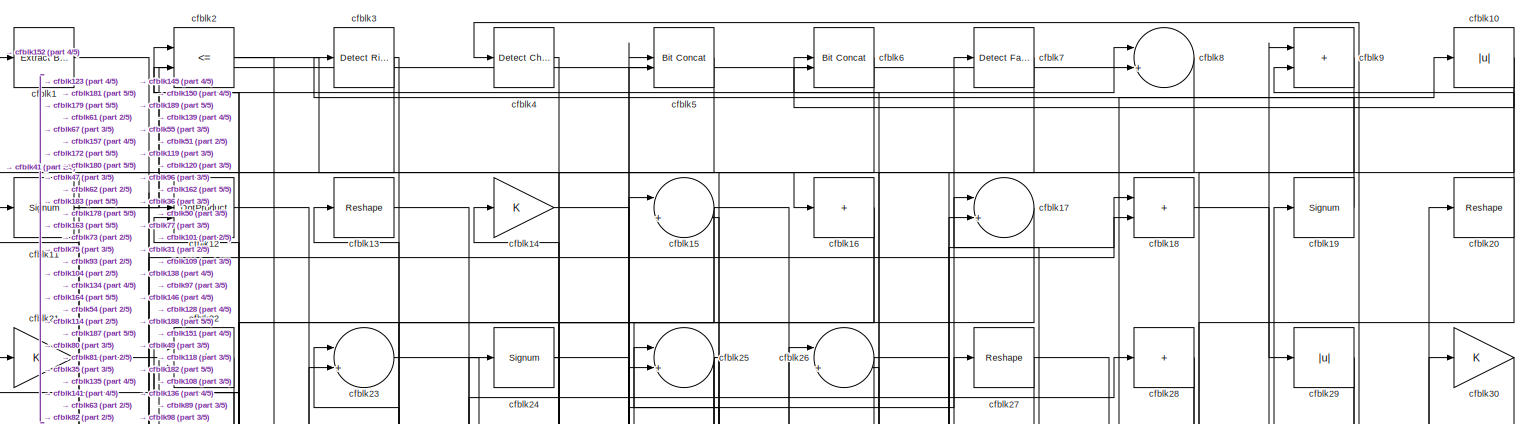
[diagram: root canvas - part 1/5, full width, top band]
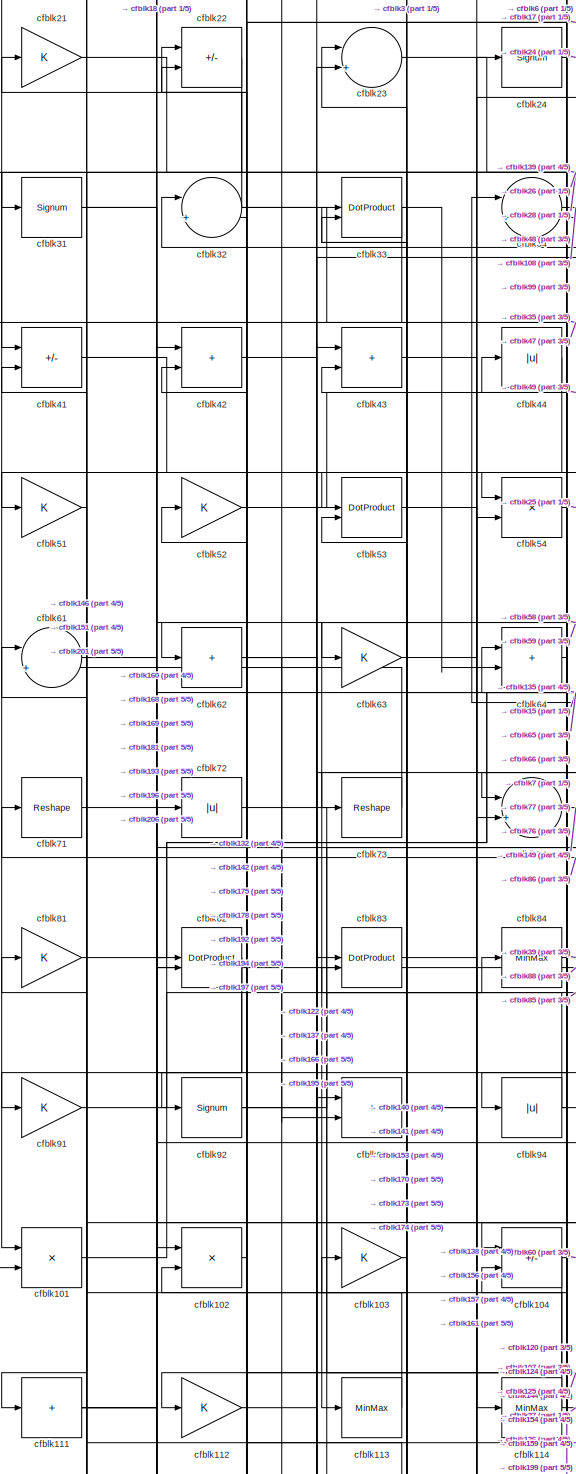
[diagram: root canvas - part 2/5, middle left region]
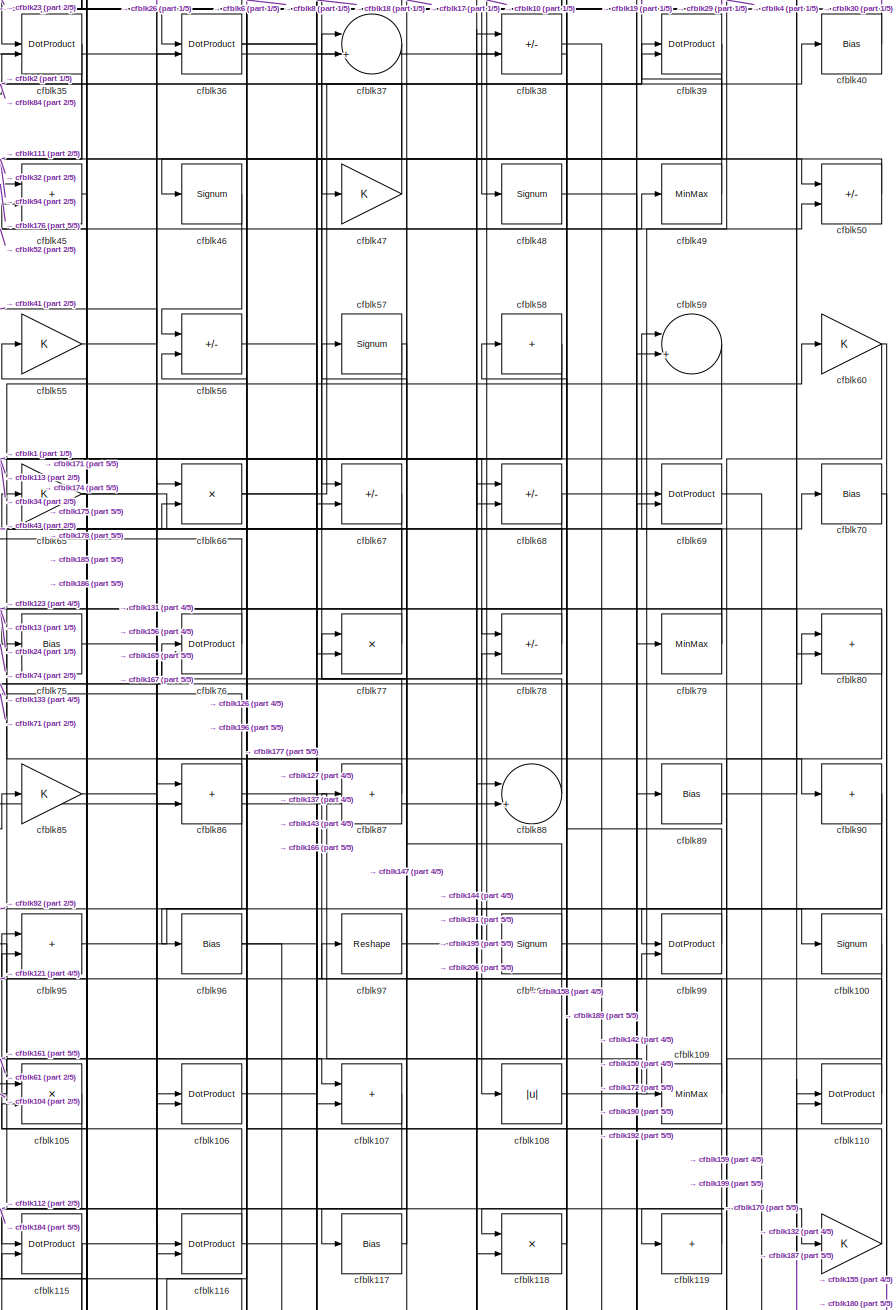
[diagram: root canvas - part 3/5, middle right region]
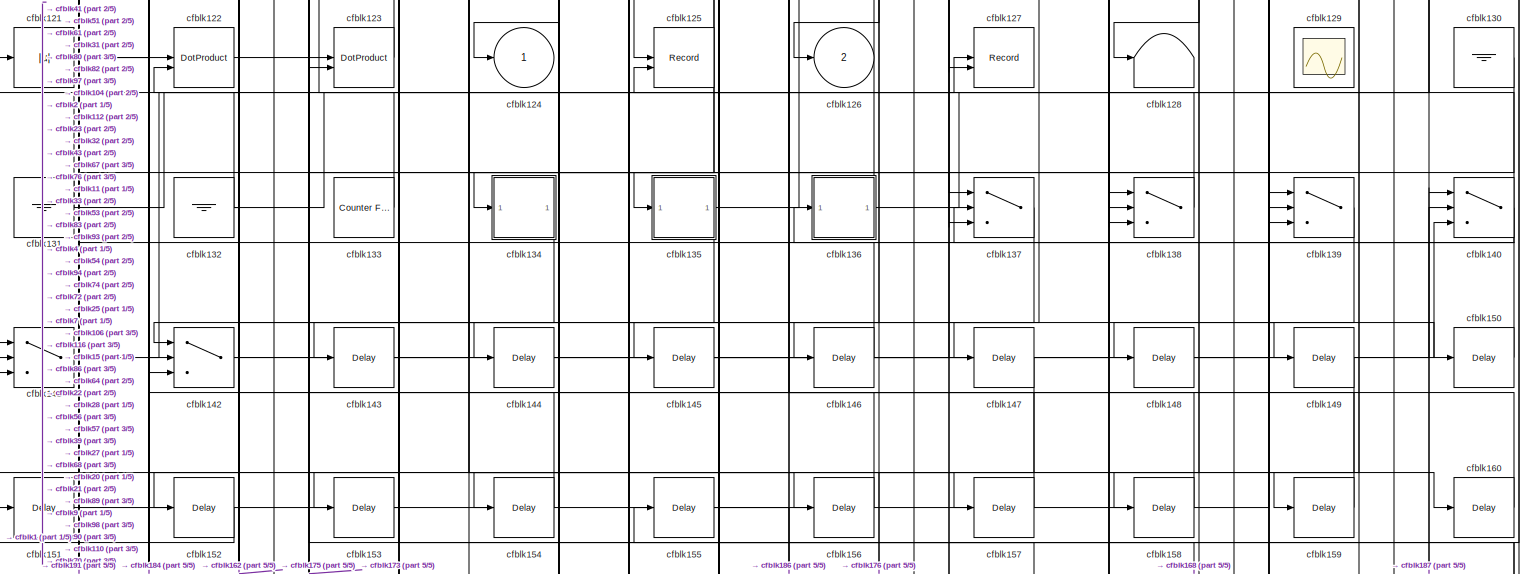
[diagram: root canvas - part 4/5, full width, bottom band]
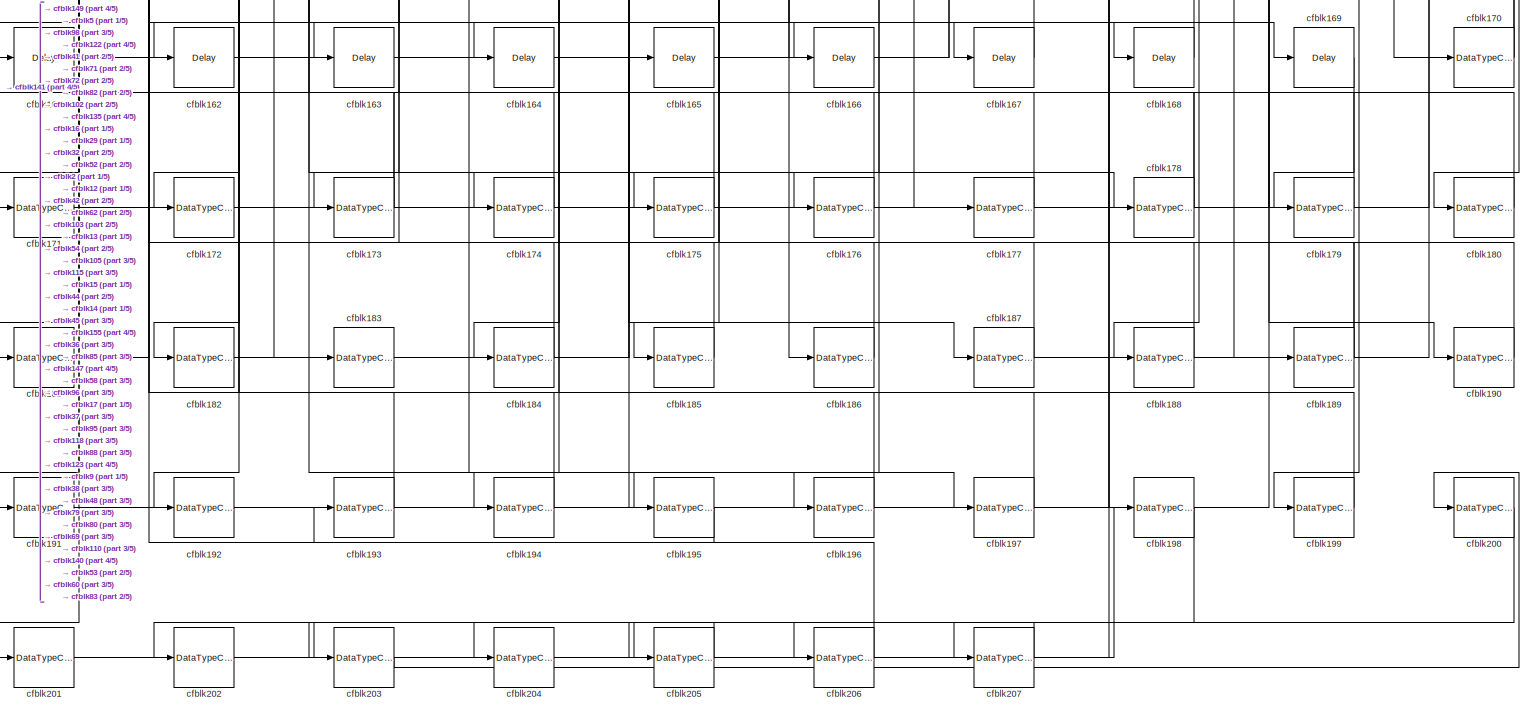
[diagram: root canvas - part 5/5, full width, bottom band]
MODEL slx_429076d135ec
KIND model
CONFIG AbsTol = auto
CONFIG EnableMultiTasking = off
CONFIG FixedStep = auto
CONFIG MaxStep = auto
CONFIG MinStep = auto
CONFIG RelTol = 1e-3
CONFIG SampleTimeConstraint = Unconstrained
CONFIG SolverName = VariableStepAuto
CONFIG StartTime = 0.0
CONFIG StopTime = 10.0
BLOCK [Reference] cfblk1  REF=simulink/Logic and Bit
Operations/Extract Bits
  LibrarySourceBlock = hdlsllib/Logic and Bit\nOperations/Extract Bits
  SourceBlock = simulink/Logic and Bit\nOperations/Extract Bits
  SourceType = Extract Bits
BLOCK [Abs] cfblk10
  SaturateOnIntegerOverflow = off
BLOCK [Signum] cfblk100
BLOCK [Product] cfblk101
  Inputs = */
  RndMeth = Zero
  SaturateOnIntegerOverflow = on
BLOCK [Product] cfblk102
  Inputs = */
  RndMeth = Zero
  SaturateOnIntegerOverflow = on
BLOCK [Gain] cfblk103
BLOCK [Sum] cfblk104
  IconShape = rectangular
  Inputs = +-
BLOCK [Product] cfblk105
  Inputs = */
  RndMeth = Zero
  SaturateOnIntegerOverflow = on
BLOCK [DotProduct] cfblk106
  OutDataTypeStr = Inherit: Inherit via internal rule
BLOCK [Sum] cfblk107
  IconShape = rectangular
BLOCK [Abs] cfblk108
  SaturateOnIntegerOverflow = off
BLOCK [MinMax] cfblk109
BLOCK [Signum] cfblk11
BLOCK [DotProduct] cfblk110
  OutDataTypeStr = Inherit: Inherit via internal rule
BLOCK [Sum] cfblk111
  IconShape = rectangular
  Inputs = +
BLOCK [Gain] cfblk112
BLOCK [MinMax] cfblk113
BLOCK [MinMax] cfblk114
BLOCK [DotProduct] cfblk115
  OutDataTypeStr = Inherit: Inherit via internal rule
BLOCK [DotProduct] cfblk116
  OutDataTypeStr = Inherit: Inherit via internal rule
BLOCK [Bias] cfblk117
  Bias = 0.0
  SaturateOnIntegerOverflow = off
BLOCK [Product] cfblk118
  Inputs = */
  RndMeth = Zero
  SaturateOnIntegerOverflow = on
BLOCK [Sum] cfblk119
  IconShape = rectangular
  Inputs = +
BLOCK [DotProduct] cfblk12
  OutDataTypeStr = Inherit: Inherit via internal rule
BLOCK [Gain] cfblk120
BLOCK [Abs] cfblk121
  SaturateOnIntegerOverflow = off
BLOCK [DotProduct] cfblk122
  OutDataTypeStr = Inherit: Inherit via internal rule
BLOCK [DotProduct] cfblk123
  OutDataTypeStr = Inherit: Inherit via internal rule
BLOCK [Outport] cfblk124
  VectorParamsAs1DForOutWhenUnconnected = off
BLOCK [Record] cfblk125
  CompatibilityTag = XY
  FileSettingsInternal = {"entries":[{"content":{"excelSettings":{"content":{},"type":"Streamout.ExcelSettings"}},"type":"Streamout.FileSettingStorage","uuid":""}],"packageUris":["http:\/\/schema.mathworks.com\/mf0\/streamout_blocks\/R2020a"],"version":"1.0"}
  Layout = [1 1]
  SignalsInternal = {"entries":[{"content":{"signals":[{"content":{"blockPath":[],"dimensions":[1],"domain":"","lineColor":"#a2142f","plots":[1],"port":1,"signalID":4365,"signalName":"XY Graph:1"},"type":"RecordBlkView.Signal","uuid":""},{"content":{"blockPath":[],"dimensions":[1],"domain":"","lineColor":"#139fff","plots":[1],"port":2,"signalID":4368,"signalName":"XY Graph:2"},"type":"RecordBlkView.Signal","uuid":""}...<+146ch>
  VisualizationBindings = {"xyplotplugin":{"info":[{"series":[{"bindingParametersList":[{"parameter":"X-Axis","signalID":4365,"signalName":"XY Graph:1"},{"parameter":"Y-Axis","signalID":4368,"signalName":"XY Graph:2"}],"seriesID":22930}],"subplotID":1}]}}
  st = -1
BLOCK [Outport] cfblk126
  Port = 2
  VectorParamsAs1DForOutWhenUnconnected = off
BLOCK [Record] cfblk127
  CompatibilityTag = XY
  FileSettingsInternal = {"entries":[{"content":{"excelSettings":{"content":{},"type":"Streamout.ExcelSettings"}},"type":"Streamout.FileSettingStorage","uuid":""}],"packageUris":["http:\/\/schema.mathworks.com\/mf0\/streamout_blocks\/R2020a"],"version":"1.0"}
  Layout = [1 1]
  SignalsInternal = {"entries":[{"content":{"signals":[{"content":{"blockPath":[],"dimensions":[1],"domain":"","lineColor":"#a2142f","plots":[1],"port":1,"signalID":4373,"signalName":"XY Graph:1"},"type":"RecordBlkView.Signal","uuid":""},{"content":{"blockPath":[],"dimensions":[1],"domain":"","lineColor":"#139fff","plots":[1],"port":2,"signalID":4376,"signalName":"XY Graph:2"},"type":"RecordBlkView.Signal","uuid":""}...<+146ch>
  VisualizationBindings = {"xyplotplugin":{"info":[{"series":[{"bindingParametersList":[{"parameter":"X-Axis","signalID":4373,"signalName":"XY Graph:1"},{"parameter":"Y-Axis","signalID":4376,"signalName":"XY Graph:2"}],"seriesID":30710}],"subplotID":1}]}}
  st = -1
BLOCK [Terminator] cfblk128
BLOCK [Scope] cfblk129
  Floating = on
  NumInputPorts = 1
  ScopeSpecificationString = Simulink.scopes.TimeScopeBlockCfg('CurrentConfiguration', extmgr.ConfigurationSet(extmgr.Configuration('Core','General UI',true,'FigureColor',[0.156862745098039 0.156862745098039 0.156862745098039]),extmgr.Configuration('Core','Source UI',true),extmgr.Configuration('Sources','WiredSimulink',true,'DataLoggingVariableName','ScopeData1','DataLoggingSaveFormat','StructureWithTime','DataLoggingLimitDat...<+2713ch>
BLOCK [Reshape] cfblk13
BLOCK [Ground] cfblk130
BLOCK [Ground] cfblk131
BLOCK [Ground] cfblk132
BLOCK [Reference] cfblk133  REF=hdlsllib/Sources/Counter
Free-Running
  SourceBlock = hdlsllib/Sources/Counter\nFree-Running
  SourceType = Counter Free-Running
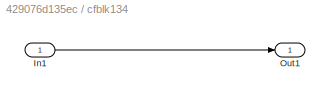
BLOCK [SubSystem] cfblk134
  LibrarySourceBlock = hdlsllib/Ports &\nSubsystems/Subsystem
BLOCK [Inport] cfblk134/In1
BLOCK [Outport] cfblk134/Out1
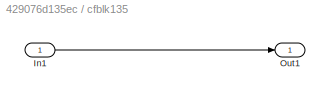
BLOCK [SubSystem] cfblk135
  LibrarySourceBlock = hdlsllib/Ports &\nSubsystems/Subsystem
BLOCK [Inport] cfblk135/In1
BLOCK [Outport] cfblk135/Out1
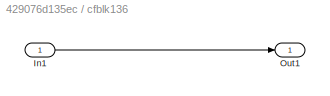
BLOCK [SubSystem] cfblk136
  LibrarySourceBlock = hdlsllib/Ports &\nSubsystems/Subsystem
BLOCK [Inport] cfblk136/In1
BLOCK [Outport] cfblk136/Out1
BLOCK [Switch] cfblk137
  InputSameDT = off
  SaturateOnIntegerOverflow = off
BLOCK [Switch] cfblk138
  InputSameDT = off
  SaturateOnIntegerOverflow = off
BLOCK [Switch] cfblk139
  InputSameDT = off
  SaturateOnIntegerOverflow = off
BLOCK [Gain] cfblk14
BLOCK [Switch] cfblk140
  InputSameDT = off
  SaturateOnIntegerOverflow = off
BLOCK [Switch] cfblk141
  InputSameDT = off
  SaturateOnIntegerOverflow = off
BLOCK [Switch] cfblk142
  InputSameDT = off
  SaturateOnIntegerOverflow = off
BLOCK [Delay] cfblk143
  InputPortMap = u0
  SampleTime = 1
BLOCK [Delay] cfblk144
  InputPortMap = u0
  SampleTime = 1
BLOCK [Delay] cfblk145
  InputPortMap = u0
  SampleTime = 1
BLOCK [Delay] cfblk146
  InputPortMap = u0
  SampleTime = 1
BLOCK [Delay] cfblk147
  InputPortMap = u0
  SampleTime = 1
BLOCK [Delay] cfblk148
  InputPortMap = u0
  SampleTime = 1
BLOCK [Delay] cfblk149
  InputPortMap = u0
  SampleTime = 1
BLOCK [Sum] cfblk15
  Inputs = |++
BLOCK [Delay] cfblk150
  InputPortMap = u0
  SampleTime = 1
BLOCK [Delay] cfblk151
  InputPortMap = u0
  SampleTime = 1
BLOCK [Delay] cfblk152
  InputPortMap = u0
  SampleTime = 1
BLOCK [Delay] cfblk153
  InputPortMap = u0
  SampleTime = 1
BLOCK [Delay] cfblk154
  InputPortMap = u0
  SampleTime = 1
BLOCK [Delay] cfblk155
  InputPortMap = u0
  SampleTime = 1
BLOCK [Delay] cfblk156
  InputPortMap = u0
  SampleTime = 1
BLOCK [Delay] cfblk157
  InputPortMap = u0
  SampleTime = 1
BLOCK [Delay] cfblk158
  InputPortMap = u0
  SampleTime = 1
BLOCK [Delay] cfblk159
  InputPortMap = u0
  SampleTime = 1
BLOCK [Sum] cfblk16
  IconShape = rectangular
  Inputs = +
BLOCK [Delay] cfblk160
  InputPortMap = u0
  SampleTime = 1
BLOCK [Delay] cfblk161
  InputPortMap = u0
  SampleTime = 1
BLOCK [Delay] cfblk162
  InputPortMap = u0
  SampleTime = 1
BLOCK [Delay] cfblk163
  InputPortMap = u0
  SampleTime = 1
BLOCK [Delay] cfblk164
  InputPortMap = u0
  SampleTime = 1
BLOCK [Delay] cfblk165
  InputPortMap = u0
  SampleTime = 1
BLOCK [Delay] cfblk166
  InputPortMap = u0
  SampleTime = 1
BLOCK [Delay] cfblk167
  InputPortMap = u0
  SampleTime = 1
BLOCK [Delay] cfblk168
  InputPortMap = u0
  SampleTime = 1
BLOCK [Delay] cfblk169
  InputPortMap = u0
  SampleTime = 1
BLOCK [Sum] cfblk17
  Inputs = |++
BLOCK [DataTypeConversion] cfblk170
  RndMeth = Floor
  SaturateOnIntegerOverflow = off
BLOCK [DataTypeConversion] cfblk171
  OutDataTypeStr = uint8
  RndMeth = Floor
  SaturateOnIntegerOverflow = off
BLOCK [DataTypeConversion] cfblk172
  OutDataTypeStr = uint8
  RndMeth = Floor
  SaturateOnIntegerOverflow = off
BLOCK [DataTypeConversion] cfblk173
  RndMeth = Floor
  SaturateOnIntegerOverflow = off
BLOCK [DataTypeConversion] cfblk174
  OutDataTypeStr = uint8
  RndMeth = Floor
  SaturateOnIntegerOverflow = off
BLOCK [DataTypeConversion] cfblk175
  RndMeth = Floor
  SaturateOnIntegerOverflow = off
BLOCK [DataTypeConversion] cfblk176
  OutDataTypeStr = uint8
  RndMeth = Floor
  SaturateOnIntegerOverflow = off
BLOCK [DataTypeConversion] cfblk177
  OutDataTypeStr = uint8
  RndMeth = Floor
  SaturateOnIntegerOverflow = off
BLOCK [DataTypeConversion] cfblk178
  RndMeth = Floor
  SaturateOnIntegerOverflow = off
BLOCK [DataTypeConversion] cfblk179
  OutDataTypeStr = uint8
  RndMeth = Floor
  SaturateOnIntegerOverflow = off
BLOCK [Sum] cfblk18
  IconShape = rectangular
BLOCK [DataTypeConversion] cfblk180
  OutDataTypeStr = uint8
  RndMeth = Floor
  SaturateOnIntegerOverflow = off
BLOCK [DataTypeConversion] cfblk181
  OutDataTypeStr = uint8
  RndMeth = Floor
  SaturateOnIntegerOverflow = off
BLOCK [DataTypeConversion] cfblk182
  OutDataTypeStr = uint8
  RndMeth = Floor
  SaturateOnIntegerOverflow = off
BLOCK [DataTypeConversion] cfblk183
  OutDataTypeStr = uint8
  RndMeth = Floor
  SaturateOnIntegerOverflow = off
BLOCK [DataTypeConversion] cfblk184
  OutDataTypeStr = uint8
  RndMeth = Floor
  SaturateOnIntegerOverflow = off
BLOCK [DataTypeConversion] cfblk185
  OutDataTypeStr = uint8
  RndMeth = Floor
  SaturateOnIntegerOverflow = off
BLOCK [DataTypeConversion] cfblk186
  OutDataTypeStr = uint8
  RndMeth = Floor
  SaturateOnIntegerOverflow = off
BLOCK [DataTypeConversion] cfblk187
  RndMeth = Floor
  SaturateOnIntegerOverflow = off
BLOCK [DataTypeConversion] cfblk188
  OutDataTypeStr = uint8
  RndMeth = Floor
  SaturateOnIntegerOverflow = off
BLOCK [DataTypeConversion] cfblk189
  RndMeth = Floor
  SaturateOnIntegerOverflow = off
BLOCK [Signum] cfblk19
BLOCK [DataTypeConversion] cfblk190
  OutDataTypeStr = uint8
  RndMeth = Floor
  SaturateOnIntegerOverflow = off
BLOCK [DataTypeConversion] cfblk191
  OutDataTypeStr = uint8
  RndMeth = Floor
  SaturateOnIntegerOverflow = off
BLOCK [DataTypeConversion] cfblk192
  RndMeth = Floor
  SaturateOnIntegerOverflow = off
BLOCK [DataTypeConversion] cfblk193
  OutDataTypeStr = uint8
  RndMeth = Floor
  SaturateOnIntegerOverflow = off
BLOCK [DataTypeConversion] cfblk194
  OutDataTypeStr = uint8
  RndMeth = Floor
  SaturateOnIntegerOverflow = off
BLOCK [DataTypeConversion] cfblk195
  RndMeth = Floor
  SaturateOnIntegerOverflow = off
BLOCK [DataTypeConversion] cfblk196
  OutDataTypeStr = uint8
  RndMeth = Floor
  SaturateOnIntegerOverflow = off
BLOCK [DataTypeConversion] cfblk197
  OutDataTypeStr = uint8
  RndMeth = Floor
  SaturateOnIntegerOverflow = off
BLOCK [DataTypeConversion] cfblk198
  RndMeth = Floor
  SaturateOnIntegerOverflow = off
BLOCK [DataTypeConversion] cfblk199
  OutDataTypeStr = uint8
  RndMeth = Floor
  SaturateOnIntegerOverflow = off
BLOCK [RelationalOperator] cfblk2
  InputSameDT = off
  Operator = <=
  OutDataTypeStr = boolean
BLOCK [Reshape] cfblk20
BLOCK [DataTypeConversion] cfblk200
  RndMeth = Floor
  SaturateOnIntegerOverflow = off
BLOCK [DataTypeConversion] cfblk201
  OutDataTypeStr = uint8
  RndMeth = Floor
  SaturateOnIntegerOverflow = off
BLOCK [DataTypeConversion] cfblk202
  RndMeth = Floor
  SaturateOnIntegerOverflow = off
BLOCK [DataTypeConversion] cfblk203
  OutDataTypeStr = uint8
  RndMeth = Floor
  SaturateOnIntegerOverflow = off
BLOCK [DataTypeConversion] cfblk204
  RndMeth = Floor
  SaturateOnIntegerOverflow = off
BLOCK [DataTypeConversion] cfblk205
  OutDataTypeStr = uint8
  RndMeth = Floor
  SaturateOnIntegerOverflow = off
BLOCK [DataTypeConversion] cfblk206
  RndMeth = Floor
  SaturateOnIntegerOverflow = off
BLOCK [DataTypeConversion] cfblk207
  OutDataTypeStr = uint8
  RndMeth = Floor
  SaturateOnIntegerOverflow = off
BLOCK [Gain] cfblk21
BLOCK [Sum] cfblk22
  IconShape = rectangular
  Inputs = +-
BLOCK [Sum] cfblk23
  Inputs = |++
BLOCK [Signum] cfblk24
BLOCK [Sum] cfblk25
  Inputs = |++
BLOCK [Sum] cfblk26
  Inputs = |++
BLOCK [Reshape] cfblk27
BLOCK [Sum] cfblk28
  IconShape = rectangular
  Inputs = +
BLOCK [Abs] cfblk29
  SaturateOnIntegerOverflow = off
BLOCK [Reference] cfblk3  REF=hdlsllib/Logic and Bit
Operations/Detect Rise
Positive
  SourceBlock = hdlsllib/Logic and Bit\nOperations/Detect Rise\nPositive
  SourceType = Detect Rise Positive
BLOCK [Gain] cfblk30
BLOCK [Signum] cfblk31
BLOCK [Sum] cfblk32
  Inputs = |++
BLOCK [DotProduct] cfblk33
  OutDataTypeStr = Inherit: Inherit via internal rule
BLOCK [Sum] cfblk34
  Inputs = |++
BLOCK [DotProduct] cfblk35
  OutDataTypeStr = Inherit: Inherit via internal rule
BLOCK [DotProduct] cfblk36
  OutDataTypeStr = Inherit: Inherit via internal rule
BLOCK [Sum] cfblk37
  Inputs = |++
BLOCK [Sum] cfblk38
  IconShape = rectangular
  Inputs = +-
BLOCK [DotProduct] cfblk39
  OutDataTypeStr = Inherit: Inherit via internal rule
BLOCK [Reference] cfblk4  REF=simulink/Logic and Bit
Operations/Detect
Change
  LibrarySourceBlock = hdlsllib/Logic and Bit\nOperations/Detect\nChange
  SourceBlock = simulink/Logic and Bit\nOperations/Detect\nChange
  SourceType = Detect Change
BLOCK [Bias] cfblk40
  Bias = 0.0
  SaturateOnIntegerOverflow = off
BLOCK [Sum] cfblk41
  IconShape = rectangular
  Inputs = +-
BLOCK [Sum] cfblk42
  IconShape = rectangular
BLOCK [Sum] cfblk43
  IconShape = rectangular
BLOCK [Abs] cfblk44
  SaturateOnIntegerOverflow = off
BLOCK [Sum] cfblk45
  IconShape = rectangular
BLOCK [Signum] cfblk46
BLOCK [Gain] cfblk47
BLOCK [Signum] cfblk48
BLOCK [MinMax] cfblk49
BLOCK [Reference] cfblk5  REF=hdlsllib/Logic and Bit
Operations/Bit Concat
  SourceBlock = hdlsllib/Logic and Bit\nOperations/Bit Concat
  SourceType = Bit Concat
BLOCK [Sum] cfblk50
  IconShape = rectangular
  Inputs = +-
BLOCK [Gain] cfblk51
BLOCK [Gain] cfblk52
BLOCK [DotProduct] cfblk53
  OutDataTypeStr = Inherit: Inherit via internal rule
BLOCK [Product] cfblk54
  Inputs = */
  RndMeth = Zero
  SaturateOnIntegerOverflow = on
BLOCK [Gain] cfblk55
BLOCK [Sum] cfblk56
  IconShape = rectangular
  Inputs = +-
BLOCK [Signum] cfblk57
BLOCK [Sum] cfblk58
  IconShape = rectangular
  Inputs = +
BLOCK [Sum] cfblk59
  Inputs = |++
BLOCK [Reference] cfblk6  REF=hdlsllib/Logic and Bit
Operations/Bit Concat
  SourceBlock = hdlsllib/Logic and Bit\nOperations/Bit Concat
  SourceType = Bit Concat
BLOCK [Gain] cfblk60
BLOCK [Sum] cfblk61
  Inputs = |++
BLOCK [Sum] cfblk62
  IconShape = rectangular
  Inputs = +
BLOCK [Gain] cfblk63
BLOCK [Sum] cfblk64
  IconShape = rectangular
BLOCK [Gain] cfblk65
BLOCK [Product] cfblk66
  Inputs = */
  RndMeth = Zero
  SaturateOnIntegerOverflow = on
BLOCK [Sum] cfblk67
  IconShape = rectangular
  Inputs = +-
BLOCK [Sum] cfblk68
  IconShape = rectangular
  Inputs = +-
BLOCK [DotProduct] cfblk69
  OutDataTypeStr = Inherit: Inherit via internal rule
BLOCK [Reference] cfblk7  REF=hdlsllib/Logic and Bit
Operations/Detect Fall
Negative
  SourceBlock = hdlsllib/Logic and Bit\nOperations/Detect Fall\nNegative
  SourceType = Detect Fall Negative
BLOCK [Bias] cfblk70
  Bias = 0.0
  SaturateOnIntegerOverflow = off
BLOCK [Reshape] cfblk71
BLOCK [Abs] cfblk72
  SaturateOnIntegerOverflow = off
BLOCK [Reshape] cfblk73
BLOCK [Sum] cfblk74
  Inputs = |++
BLOCK [Bias] cfblk75
  Bias = 0.0
  SaturateOnIntegerOverflow = off
BLOCK [DotProduct] cfblk76
  OutDataTypeStr = Inherit: Inherit via internal rule
BLOCK [Product] cfblk77
  Inputs = */
  RndMeth = Zero
  SaturateOnIntegerOverflow = on
BLOCK [Sum] cfblk78
  IconShape = rectangular
  Inputs = +-
BLOCK [MinMax] cfblk79
BLOCK [Sum] cfblk8
  Inputs = |++
BLOCK [Sum] cfblk80
  IconShape = rectangular
BLOCK [Gain] cfblk81
BLOCK [DotProduct] cfblk82
  OutDataTypeStr = Inherit: Inherit via internal rule
BLOCK [DotProduct] cfblk83
  OutDataTypeStr = Inherit: Inherit via internal rule
BLOCK [MinMax] cfblk84
BLOCK [Gain] cfblk85
BLOCK [Sum] cfblk86
  IconShape = rectangular
BLOCK [Sum] cfblk87
  IconShape = rectangular
  Inputs = +
BLOCK [Sum] cfblk88
  Inputs = |++
BLOCK [Bias] cfblk89
  Bias = 0.0
  SaturateOnIntegerOverflow = off
BLOCK [Sum] cfblk9
  IconShape = rectangular
BLOCK [Sum] cfblk90
  IconShape = rectangular
  Inputs = +
BLOCK [Gain] cfblk91
BLOCK [Signum] cfblk92
BLOCK [Sum] cfblk93
  IconShape = rectangular
BLOCK [Abs] cfblk94
  SaturateOnIntegerOverflow = off
BLOCK [Sum] cfblk95
  IconShape = rectangular
BLOCK [Bias] cfblk96
  Bias = 0.0
  SaturateOnIntegerOverflow = off
BLOCK [Reshape] cfblk97
BLOCK [Signum] cfblk98
BLOCK [DotProduct] cfblk99
  OutDataTypeStr = Inherit: Inherit via internal rule
LINE cfblk100:1 -> cfblk119:1
LINE cfblk101:1 -> cfblk7:1
LINE cfblk102:1 -> cfblk192:1
LINE cfblk103:1 -> cfblk173:1
NET cfblk104:1 -> cfblk142:1, cfblk60:1
LINE cfblk105:1 -> cfblk184:1
LINE cfblk106:1 -> cfblk40:1
LINE cfblk107:1 -> cfblk112:1
LINE cfblk108:1 -> cfblk4:1
LINE cfblk109:1 -> cfblk17:1
NET cfblk10:1 -> cfblk6:2, cfblk77:2
LINE cfblk110:1 -> cfblk87:1
NET cfblk111:1 -> cfblk65:1, cfblk66:2, cfblk88:2
LINE cfblk112:1 -> cfblk139:2
LINE cfblk113:1 -> cfblk81:1
NET cfblk114:1 -> cfblk27:1, cfblk32:1
NET cfblk115:1 -> cfblk171:1, cfblk174:1, cfblk66:1
NET cfblk116:1 -> cfblk78:2, cfblk95:1
LINE cfblk117:1 -> cfblk77:1
LINE cfblk118:1 -> cfblk58:1
LINE cfblk119:1 -> cfblk6:1
NET cfblk11:1 -> cfblk8:1, cfblk8:2
LINE cfblk120:1 -> cfblk26:2
NET cfblk121:1 -> cfblk80:1, cfblk97:1
LINE cfblk122:1 -> cfblk23:2
LINE cfblk123:1 -> cfblk11:1
LINE cfblk12:1 -> cfblk178:1
LINE cfblk130:1 -> cfblk138:2
NET cfblk131:1 -> cfblk121:1, cfblk86:2
NET cfblk132:1 -> cfblk110:2, cfblk22:1, cfblk61:1
LINE cfblk133:1 -> cfblk76:1
LINE cfblk134/In1:1 -> cfblk134/Out1:1
LINE cfblk134:1 -> cfblk143:1
LINE cfblk135/In1:1 -> cfblk135/Out1:1
NET cfblk135:1 -> cfblk162:1, cfblk64:1
LINE cfblk136/In1:1 -> cfblk136/Out1:1
NET cfblk136:1 -> cfblk20:1, cfblk22:2
LINE cfblk137:1 -> cfblk152:1
LINE cfblk138:1 -> cfblk125:2
LINE cfblk139:1 -> cfblk148:1
LINE cfblk13:1 -> cfblk75:1
NET cfblk140:1 -> cfblk136:1, cfblk137:2, cfblk33:2
LINE cfblk141:1 -> cfblk127:1
NET cfblk142:1 -> cfblk74:2, cfblk89:1
LINE cfblk143:1 -> cfblk67:2
LINE cfblk144:1 -> cfblk68:1
LINE cfblk145:1 -> cfblk140:3
LINE cfblk146:1 -> cfblk41:2
LINE cfblk147:1 -> cfblk176:1
LINE cfblk148:1 -> cfblk140:2
LINE cfblk149:1 -> cfblk191:1
LINE cfblk14:1 -> cfblk187:1
LINE cfblk150:1 -> cfblk25:1
LINE cfblk151:1 -> cfblk9:1
LINE cfblk152:1 -> cfblk1:1
LINE cfblk153:1 -> cfblk23:1
LINE cfblk154:1 -> cfblk142:2
LINE cfblk155:1 -> cfblk186:1
LINE cfblk156:1 -> cfblk116:1
LINE cfblk157:1 -> cfblk2:2
LINE cfblk158:1 -> cfblk106:1
LINE cfblk159:1 -> cfblk104:2
NET cfblk15:1 -> cfblk139:3, cfblk163:1, cfblk164:1
LINE cfblk160:1 -> cfblk43:1
LINE cfblk161:1 -> cfblk54:2
LINE cfblk162:1 -> cfblk17:2
LINE cfblk163:1 -> cfblk197:1
LINE cfblk164:1 -> cfblk194:1
LINE cfblk165:1 -> cfblk36:2
LINE cfblk166:1 -> cfblk37:2
LINE cfblk167:1 -> cfblk95:2
LINE cfblk168:1 -> cfblk123:1
LINE cfblk169:1 -> cfblk179:1
NET cfblk16:1 -> cfblk172:1, cfblk35:1
NET cfblk170:1 -> cfblk53:2, cfblk83:2
LINE cfblk171:1 -> cfblk69:1
LINE cfblk172:1 -> cfblk69:2
NET cfblk173:1 -> cfblk141:1, cfblk83:1
LINE cfblk174:1 -> cfblk103:1
NET cfblk175:1 -> cfblk140:1, cfblk32:2
LINE cfblk176:1 -> cfblk45:1
LINE cfblk177:1 -> cfblk45:2
NET cfblk178:1 -> cfblk115:2, cfblk52:1
LINE cfblk179:1 -> cfblk12:1
LINE cfblk17:1 -> cfblk62:1
LINE cfblk180:1 -> cfblk12:2
LINE cfblk181:1 -> cfblk72:1
LINE cfblk182:1 -> cfblk5:1
LINE cfblk183:1 -> cfblk5:2
LINE cfblk184:1 -> cfblk122:1
LINE cfblk185:1 -> cfblk105:1
LINE cfblk186:1 -> cfblk105:2
NET cfblk187:1 -> cfblk110:1, cfblk122:2
LINE cfblk188:1 -> cfblk14:1
NET cfblk189:1 -> cfblk13:1, cfblk15:2
LINE cfblk18:1 -> cfblk29:1
LINE cfblk190:1 -> cfblk38:1
LINE cfblk191:1 -> cfblk38:2
NET cfblk192:1 -> cfblk165:1, cfblk79:1
LINE cfblk193:1 -> cfblk102:1
LINE cfblk194:1 -> cfblk102:2
NET cfblk195:1 -> cfblk193:1, cfblk88:1
LINE cfblk196:1 -> cfblk42:1
LINE cfblk197:1 -> cfblk42:2
LINE cfblk198:1 -> cfblk203:1
LINE cfblk199:1 -> cfblk44:1
LINE cfblk19:1 -> cfblk3:1
LINE cfblk1:1 -> cfblk67:1
LINE cfblk200:1 -> cfblk205:1
LINE cfblk201:1 -> cfblk198:1
LINE cfblk202:1 -> cfblk207:1
LINE cfblk203:1 -> cfblk200:1
LINE cfblk204:1 -> cfblk206:1
LINE cfblk205:1 -> cfblk202:1
NET cfblk206:1 -> cfblk118:2, cfblk82:1
LINE cfblk207:1 -> cfblk204:1
NET cfblk20:1 -> cfblk128:1, cfblk9:2
LINE cfblk21:1 -> cfblk139:1
LINE cfblk22:1 -> cfblk101:1
LINE cfblk23:1 -> cfblk48:1
NET cfblk24:1 -> cfblk54:1, cfblk80:2
NET cfblk25:1 -> cfblk135:1, cfblk141:3, cfblk63:1, cfblk82:2
NET cfblk26:1 -> cfblk50:1, cfblk51:1
NET cfblk27:1 -> cfblk138:1, cfblk31:1
NET cfblk28:1 -> cfblk101:2, cfblk146:1
NET cfblk29:1 -> cfblk118:1, cfblk182:1
NET cfblk2:1 -> cfblk16:1, cfblk183:1
LINE cfblk30:1 -> cfblk98:1
NET cfblk31:1 -> cfblk160:1, cfblk53:1
NET cfblk32:1 -> cfblk137:3, cfblk21:1, cfblk47:1
NET cfblk33:1 -> cfblk141:2, cfblk153:1, cfblk64:2
LINE cfblk34:1 -> cfblk108:1
NET cfblk35:1 -> cfblk111:1, cfblk94:1
NET cfblk36:1 -> cfblk18:1, cfblk68:2
LINE cfblk37:1 -> cfblk185:1
LINE cfblk38:1 -> cfblk189:1
NET cfblk39:1 -> cfblk126:1, cfblk147:1
NET cfblk3:1 -> cfblk41:1, cfblk73:1
LINE cfblk40:1 -> cfblk36:1
NET cfblk41:1 -> cfblk169:1, cfblk86:1
LINE cfblk42:1 -> cfblk195:1
LINE cfblk43:1 -> cfblk114:1
LINE cfblk44:1 -> cfblk201:1
LINE cfblk45:1 -> cfblk175:1
LINE cfblk46:1 -> cfblk56:1
LINE cfblk47:1 -> cfblk2:1
LINE cfblk48:1 -> cfblk190:1
LINE cfblk49:1 -> cfblk19:1
LINE cfblk4:1 -> cfblk134:1
LINE cfblk50:1 -> cfblk46:1
LINE cfblk51:1 -> cfblk151:1
LINE cfblk52:1 -> cfblk49:1
LINE cfblk53:1 -> cfblk157:1
NET cfblk54:1 -> cfblk144:1, cfblk25:2
LINE cfblk55:1 -> cfblk26:1
LINE cfblk56:1 -> cfblk137:1
NET cfblk57:1 -> cfblk117:1, cfblk127:2
NET cfblk58:1 -> cfblk196:1, cfblk74:1
LINE cfblk59:1 -> cfblk113:1
LINE cfblk5:1 -> cfblk181:1
NET cfblk60:1 -> cfblk180:1, cfblk99:1
NET cfblk61:1 -> cfblk107:1, cfblk18:2
NET cfblk62:1 -> cfblk166:1, cfblk93:1, cfblk93:2
LINE cfblk63:1 -> cfblk28:1
LINE cfblk64:1 -> cfblk124:1
NET cfblk65:1 -> cfblk115:1, cfblk70:1, cfblk90:1
NET cfblk66:1 -> cfblk39:1, cfblk50:2
LINE cfblk67:1 -> cfblk123:2
NET cfblk68:1 -> cfblk116:2, cfblk59:2
LINE cfblk69:1 -> cfblk170:1
LINE cfblk6:1 -> cfblk104:1
LINE cfblk70:1 -> cfblk155:1
LINE cfblk71:1 -> cfblk168:1
LINE cfblk72:1 -> cfblk125:1
LINE cfblk73:1 -> cfblk61:2
NET cfblk74:1 -> cfblk107:2, cfblk149:1
LINE cfblk75:1 -> cfblk106:2
LINE cfblk76:1 -> cfblk34:1
LINE cfblk77:1 -> cfblk43:2
LINE cfblk78:1 -> cfblk55:1
NET cfblk79:1 -> cfblk56:2, cfblk59:1
LINE cfblk7:1 -> cfblk145:1
NET cfblk80:1 -> cfblk199:1, cfblk78:1
LINE cfblk81:1 -> cfblk15:1
NET cfblk82:1 -> cfblk142:3, cfblk91:1
LINE cfblk83:1 -> cfblk156:1
LINE cfblk84:1 -> cfblk39:2
LINE cfblk85:1 -> cfblk167:1
NET cfblk86:1 -> cfblk109:1, cfblk71:1, cfblk92:1
LINE cfblk87:1 -> cfblk37:1
LINE cfblk88:1 -> cfblk76:2
LINE cfblk89:1 -> cfblk30:1
LINE cfblk8:1 -> cfblk96:1
NET cfblk90:1 -> cfblk158:1, cfblk159:1
LINE cfblk91:1 -> cfblk84:1
NET cfblk92:1 -> cfblk35:2, cfblk85:1
NET cfblk93:1 -> cfblk138:3, cfblk24:1
NET cfblk94:1 -> cfblk120:1, cfblk154:1, cfblk33:1
LINE cfblk95:1 -> cfblk100:1
NET cfblk96:1 -> cfblk177:1, cfblk99:2
LINE cfblk97:1 -> cfblk10:1
NET cfblk98:1 -> cfblk150:1, cfblk161:1, cfblk57:1
LINE cfblk99:1 -> cfblk34:2
LINE cfblk9:1 -> cfblk188:1
note: NET lines group one-source signal fan-out (src -> all destinations, sorted); 1:1 wires keep LINE
